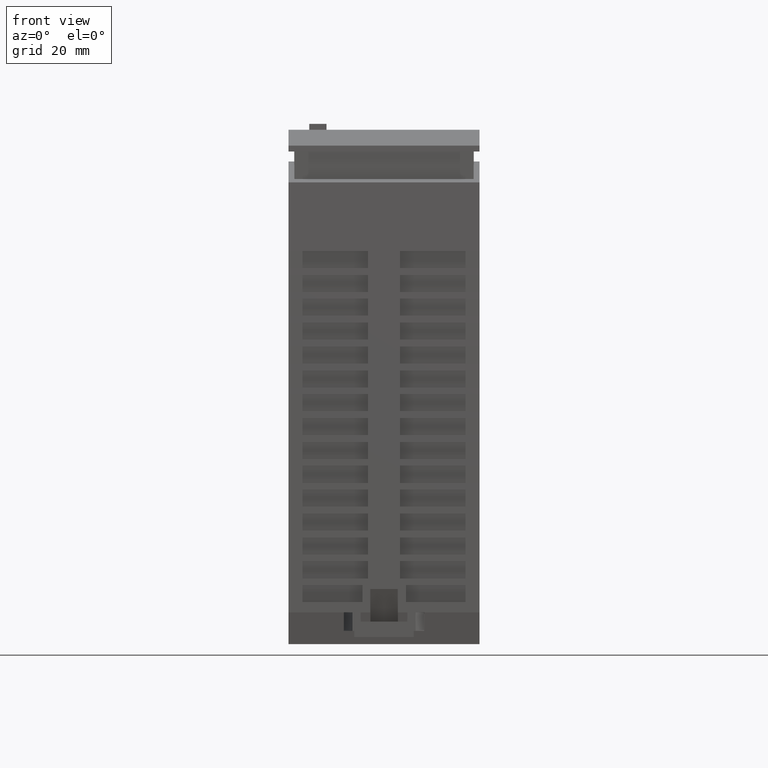
[diagram: clean part render]
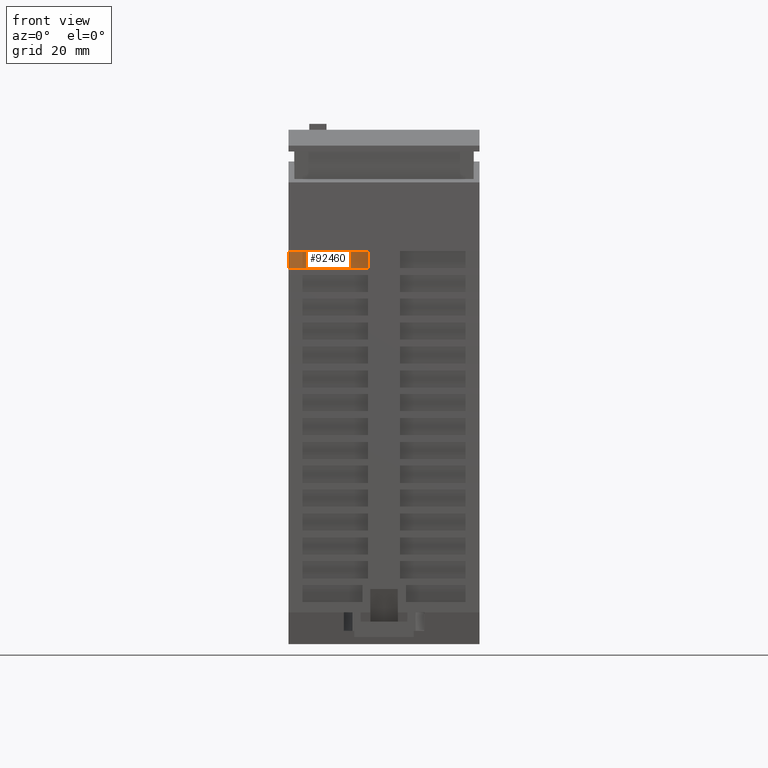
[diagram: same view with one face highlighted and labeled with its STEP entity id]
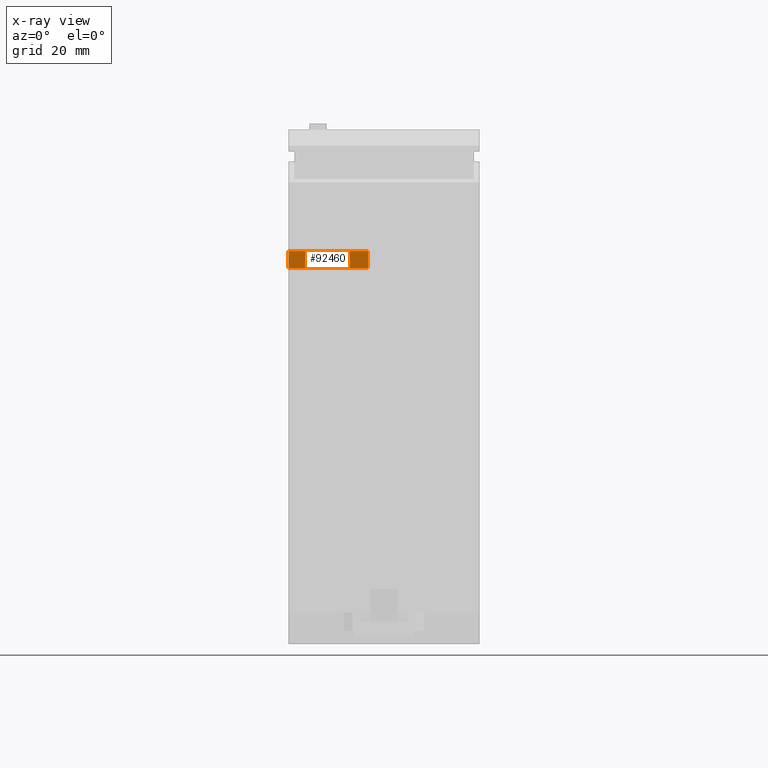
[diagram: x-ray of the same camera — body ghosted, the highlighted face saturated]
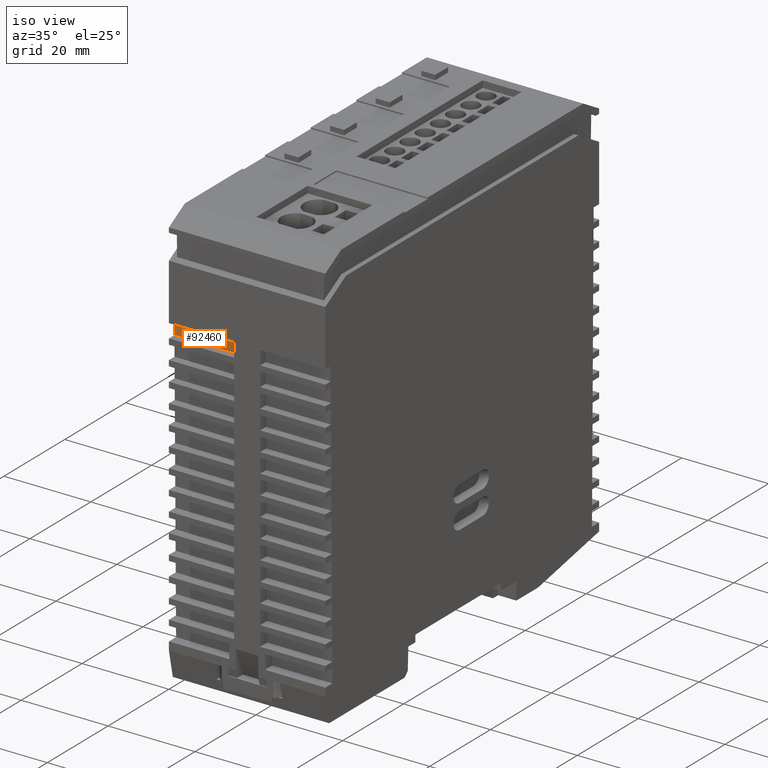
[diagram: same view with one face highlighted and labeled with its STEP entity id]
A machine part, front view. The second image highlights one B-rep face of the part: STEP entity #92460.
The next image is the same camera in x-ray: the body ghosted, the highlighted face saturated — about 0% of this face is hidden behind the body in this view.
A second angle (iso view) of the same face is appended — the face is thin or edge-on in the first view.
In plain terms, the highlighted planar face has unit normal (0, 1, 0.0087).
Its self-contained STEP definition (entity closure, byte-faithful):
#23430=CARTESIAN_POINT('',(7.57657763083906E-8,-43.5179102261902,
68.103181576721));
#23440=VERTEX_POINT('',#23430);
#23470=CARTESIAN_POINT('',(4.82930641517131E-8,-43.3006684819491,
43.2097433233275));
#23480=DIRECTION('',(-1.10357057953765E-9,0.00872653548818193,
-0.99996192306426));
#23490=VECTOR('',#23480,1.);
#23500=LINE('',#23470,#23490);
#23510=CARTESIAN_POINT('',(7.22471853335374E-8,-43.4900868050336,
64.9149333006888));
#23520=VERTEX_POINT('',#23510);
#23530=EDGE_CURVE('',#23440,#23520,#23500,.T.);
#78780=CARTESIAN_POINT('',(7.56626497334943E-8,-43.5170948042076,
68.0097434723465));
#78790=DIRECTION('',(-5.61887817878561E-13,0.99996192306426,
0.00872653548818193));
#78800=DIRECTION('',(1.10357057953765E-9,-0.00872653548818193,
0.99996192306426));
#78810=AXIS2_PLACEMENT_3D('',#78780,#78790,#78800);
#78820=PLANE('',#78810);
#92040=CARTESIAN_POINT('',(11.7500000722472,-43.4900868049139,
64.9149332877224));
#92050=DIRECTION('',(1.,1.01922160206217E-11,-1.10352385862983E-9));
#92060=VECTOR('',#92050,1.);
#92070=LINE('',#92040,#92060);
#92080=CARTESIAN_POINT('',(15.0000000722472,-43.4900868048807,
64.9149332841359));
#92090=VERTEX_POINT('',#92080);
#92100=EDGE_CURVE('',#23520,#92090,#92070,.T.);
#92280=CARTESIAN_POINT('',(11.7500000757658,-43.5179102260704,
68.1031815637546));
#92290=DIRECTION('',(-1.,-1.0192214248961E-11,1.10352365561762E-9));
#92300=VECTOR('',#92290,1.);
#92310=LINE('',#92280,#92300);
#92320=CARTESIAN_POINT('',(15.0000000757658,-43.5179102260373,
68.1031815601682));
#92330=VERTEX_POINT('',#92320);
#92340=EDGE_CURVE('',#92330,#23440,#92310,.T.);
#92350=ORIENTED_EDGE('',*,*,#92340,.T.);
#92360=CARTESIAN_POINT('',(15.0000000933204,-43.6567246885438,
84.009743455795));
#92370=DIRECTION('',(1.10357057953765E-9,-0.00872653548818193,
0.99996192306426));
#92380=VECTOR('',#92370,1.);
#92390=LINE('',#92360,#92380);
#92400=EDGE_CURVE('',#92090,#92330,#92390,.T.);
#92410=ORIENTED_EDGE('',*,*,#92400,.T.);
#92420=ORIENTED_EDGE('',*,*,#92100,.T.);
#92430=ORIENTED_EDGE('',*,*,#23530,.T.);
#92440=EDGE_LOOP('',(#92430,#92420,#92410,#92350));
#92450=FACE_OUTER_BOUND('',#92440,.T.);
#92460=ADVANCED_FACE('',(#92450),#78820,.F.);